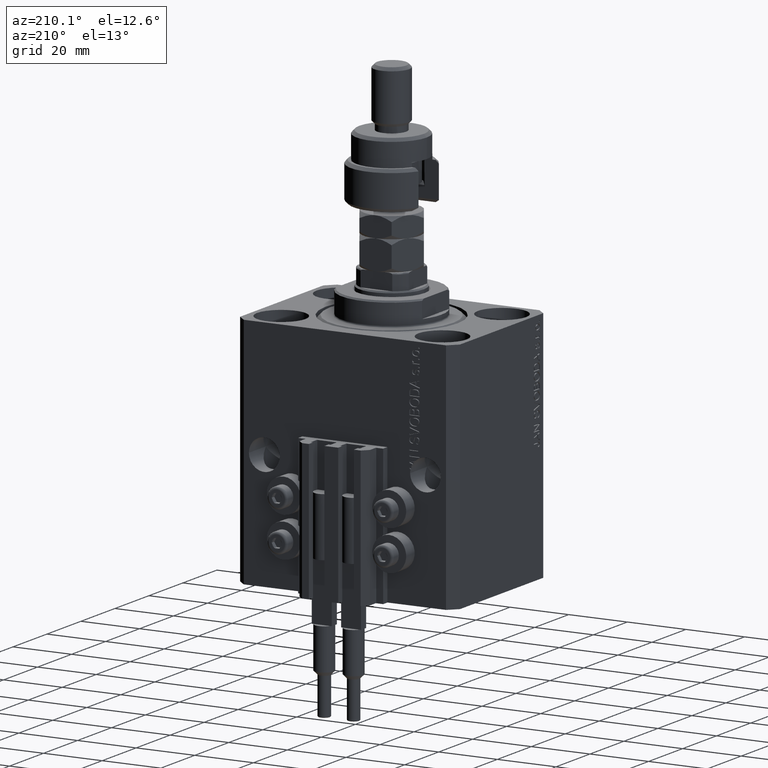
[diagram: clean part render]
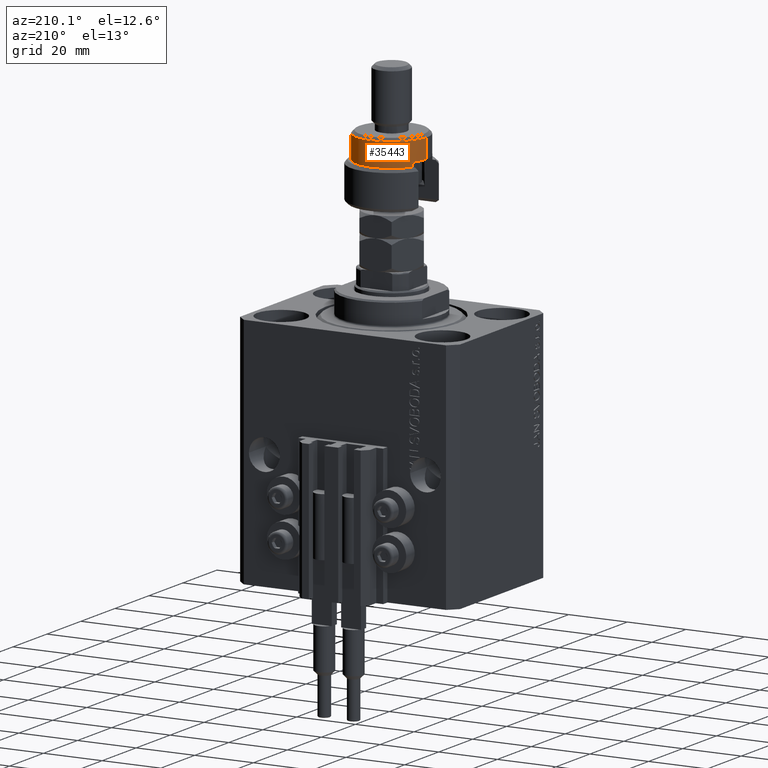
[diagram: same view with one face highlighted and labeled with its STEP entity id]
A machine part, auxiliary view. The second image highlights one B-rep face of the part: STEP entity #35443.
In plain terms, the highlighted cylindrical surface (partial cylindrical patch) has radius 12 mm, axis along (-0, -0, -1).
Its self-contained STEP definition (entity closure, byte-faithful):
#2382 = ORIENTED_EDGE ( 'NONE', *, *, #31081, .T. ) ;
#3164 = CARTESIAN_POINT ( 'NONE',  ( 0.000000000000000000, 0.000000000000000000, 20.99999999999998224 ) ) ;
#3354 = ORIENTED_EDGE ( 'NONE', *, *, #36616, .T. ) ;
#3698 = CIRCLE ( 'NONE', #4525, 12.00000000000000178 ) ;
#4154 = CARTESIAN_POINT ( 'NONE',  ( -12.00000000000000178, 0.000000000000000000, 22.00000000000000000 ) ) ;
#4525 = AXIS2_PLACEMENT_3D ( 'NONE', #34912, #38256, #34662 ) ;
#5177 = CARTESIAN_POINT ( 'NONE',  ( 0.000000000000000000, 0.000000000000000000, 14.50000000000000000 ) ) ;
#5493 = CARTESIAN_POINT ( 'NONE',  ( 12.00000000000000178, 1.469576158976824144E-15, 22.00000000000000000 ) ) ;
#5927 = EDGE_CURVE ( 'NONE', #10238, #44950, #47262, .T. ) ;
#6166 = ORIENTED_EDGE ( 'NONE', *, *, #10414, .T. ) ;
#6226 = LINE ( 'NONE', #25868, #31049 ) ;
#6283 = ORIENTED_EDGE ( 'NONE', *, *, #5927, .F. ) ;
#7817 = VERTEX_POINT ( 'NONE', #9844 ) ;
#9147 = CARTESIAN_POINT ( 'NONE',  ( 12.00000000000000178, 1.469576158976824144E-15, 13.00000000000000000 ) ) ;
#9460 = DIRECTION ( 'NONE',  ( -1.000000000000000000, 0.000000000000000000, 0.000000000000000000 ) ) ;
#9561 = LINE ( 'NONE', #5493, #30382 ) ;
#9804 = CARTESIAN_POINT ( 'NONE',  ( -10.39230484541326582, 5.999999999999998224, 14.50000000000000000 ) ) ;
#9844 = CARTESIAN_POINT ( 'NONE',  ( 12.00000000000000178, 1.469576158976824144E-15, 20.99999999999998224 ) ) ;
#10238 = VERTEX_POINT ( 'NONE', #35102 ) ;
#10414 = EDGE_CURVE ( 'NONE', #25206, #44950, #6226, .T. ) ;
#12565 = VECTOR ( 'NONE', #30461, 1000.000000000000000 ) ;
#13303 = FACE_OUTER_BOUND ( 'NONE', #33093, .T. ) ;
#13435 = AXIS2_PLACEMENT_3D ( 'NONE', #17891, #44425, #9460 ) ;
#15663 = DIRECTION ( 'NONE',  ( 0.000000000000000000, 0.000000000000000000, -1.000000000000000000 ) ) ;
#15671 = CARTESIAN_POINT ( 'NONE',  ( -12.00000000000000178, 0.000000000000000000, 20.99999999999998224 ) ) ;
#17891 = CARTESIAN_POINT ( 'NONE',  ( 0.000000000000000000, 0.000000000000000000, 22.00000000000000000 ) ) ;
#20739 = DIRECTION ( 'NONE',  ( -1.000000000000000000, 0.000000000000000000, 0.000000000000000000 ) ) ;
#20874 = CARTESIAN_POINT ( 'NONE',  ( -10.39230484541326760, 6.000000000000000000, 13.00000000000000000 ) ) ;
#22542 = ORIENTED_EDGE ( 'NONE', *, *, #45023, .T. ) ;
#23077 = DIRECTION ( 'NONE',  ( 1.000000000000000000, 0.000000000000000000, 0.000000000000000000 ) ) ;
#24233 = AXIS2_PLACEMENT_3D ( 'NONE', #3164, #15663, #23077 ) ;
#25206 = VERTEX_POINT ( 'NONE', #20874 ) ;
#25244 = AXIS2_PLACEMENT_3D ( 'NONE', #5177, #39875, #20739 ) ;
#25868 = CARTESIAN_POINT ( 'NONE',  ( -10.39230484541326760, 6.000000000000000000, 22.00000000000000000 ) ) ;
#28876 = CYLINDRICAL_SURFACE ( 'NONE', #13435, 12.00000000000000178 ) ;
#29512 = VERTEX_POINT ( 'NONE', #15671 ) ;
#30382 = VECTOR ( 'NONE', #32299, 1000.000000000000000 ) ;
#30461 = DIRECTION ( 'NONE',  ( -0.000000000000000000, -0.000000000000000000, -1.000000000000000000 ) ) ;
#31049 = VECTOR ( 'NONE', #50379, 1000.000000000000000 ) ;
#31081 = EDGE_CURVE ( 'NONE', #7817, #34010, #9561, .T. ) ;
#32299 = DIRECTION ( 'NONE',  ( -0.000000000000000000, -0.000000000000000000, -1.000000000000000000 ) ) ;
#33093 = EDGE_LOOP ( 'NONE', ( #22542, #2382, #3354, #6166, #6283, #39631 ) ) ;
#34010 = VERTEX_POINT ( 'NONE', #9147 ) ;
#34271 = LINE ( 'NONE', #4154, #12565 ) ;
#34662 = DIRECTION ( 'NONE',  ( 1.000000000000000000, 0.000000000000000000, 0.000000000000000000 ) ) ;
#34912 = CARTESIAN_POINT ( 'NONE',  ( 0.000000000000000000, 0.000000000000000000, 13.00000000000000000 ) ) ;
#35102 = CARTESIAN_POINT ( 'NONE',  ( -12.00000000000000178, 0.000000000000000000, 14.50000000000000000 ) ) ;
#35327 = EDGE_CURVE ( 'NONE', #29512, #10238, #34271, .T. ) ;
#35443 = ADVANCED_FACE ( 'NONE', ( #13303 ), #28876, .T. ) ;
#36616 = EDGE_CURVE ( 'NONE', #34010, #25206, #3698, .T. ) ;
#38256 = DIRECTION ( 'NONE',  ( 0.000000000000000000, 0.000000000000000000, 1.000000000000000000 ) ) ;
#39631 = ORIENTED_EDGE ( 'NONE', *, *, #35327, .F. ) ;
#39875 = DIRECTION ( 'NONE',  ( 0.000000000000000000, 0.000000000000000000, -1.000000000000000000 ) ) ;
#44425 = DIRECTION ( 'NONE',  ( -0.000000000000000000, -0.000000000000000000, -1.000000000000000000 ) ) ;
#44950 = VERTEX_POINT ( 'NONE', #9804 ) ;
#45023 = EDGE_CURVE ( 'NONE', #29512, #7817, #46238, .T. ) ;
#46238 = CIRCLE ( 'NONE', #24233, 12.00000000000000178 ) ;
#47262 = CIRCLE ( 'NONE', #25244, 12.00000000000000178 ) ;
#50379 = DIRECTION ( 'NONE',  ( 0.000000000000000000, 0.000000000000000000, 1.000000000000000000 ) ) ;